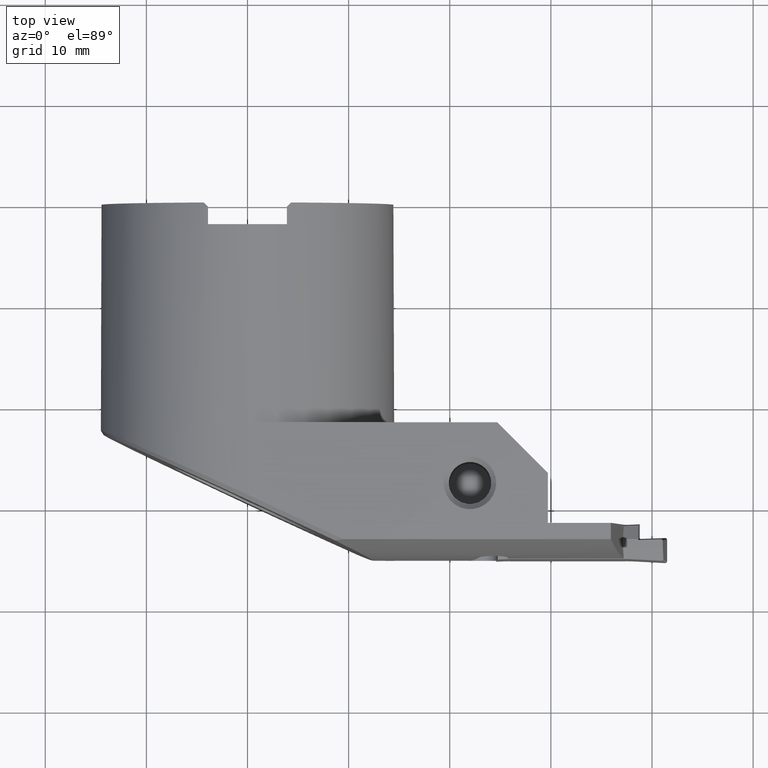
[diagram: clean part render]
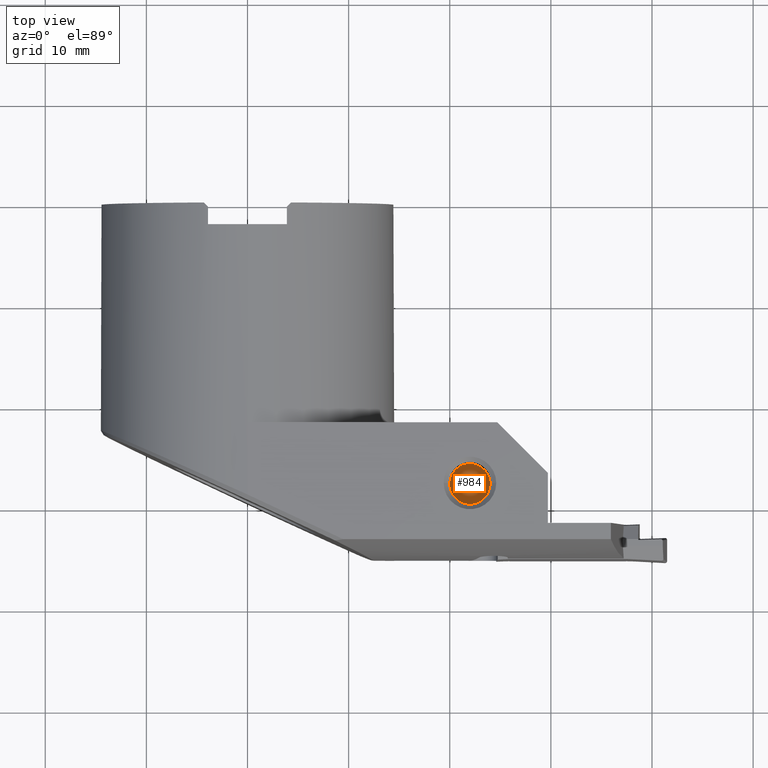
[diagram: same view with one face highlighted and labeled with its STEP entity id]
A machine part, top view. The second image highlights one B-rep face of the part: STEP entity #984.
In plain terms, the highlighted planar face has unit normal (-0, 0, -1).
Its self-contained STEP definition (entity closure, byte-faithful):
#984=ADVANCED_FACE('NONE',(#2476),#2477,.F.);
#1068=VERTEX_POINT('NONE',#2567);
#1070=EDGE_CURVE('NONE',#1474,#1068,#2569,.T.);
#1474=VERTEX_POINT('NONE',#3014);
#1494=EDGE_CURVE('NONE',#1068,#1474,#3034,.T.);
#2476=FACE_OUTER_BOUND('',#4345,.T.);
#2477=PLANE('',#4346);
#2567=CARTESIAN_POINT('',(19.9999999999999,-27.7499999999999,9.00000000000001));
#2569=CIRCLE('',#4540,2.0);
#3014=CARTESIAN_POINT('',(23.9999999999999,-27.7499999999999,9.00000000000001));
#3034=CIRCLE('',#5295,2.0);
#4345=EDGE_LOOP('',(#7222,#7223));
#4346=AXIS2_PLACEMENT_3D('',#7224,#7225,#7226);
#4540=AXIS2_PLACEMENT_3D('',#7296,#7297,#7298);
#5295=AXIS2_PLACEMENT_3D('',#7763,#7764,#7765);
#7222=ORIENTED_EDGE('',*,*,#1494,.T.);
#7223=ORIENTED_EDGE('',*,*,#1070,.T.);
#7224=CARTESIAN_POINT('',(21.9999999999999,-25.2499999999998,9.00000000000001));
#7225=DIRECTION('',(-1.55956869617806E-016,3.98923509476652E-018,-1.0));
#7226=DIRECTION('',(-1.0,2.77555756156289E-016,1.55956869617806E-016));
#7296=CARTESIAN_POINT('',(21.9999999999999,-27.7499999999999,9.00000000000001));
#7297=DIRECTION('',(1.55956869617806E-016,-3.98923509476652E-018,1.0));
#7298=DIRECTION('',(-1.0,2.77555756156289E-016,1.55956869617806E-016));
#7763=CARTESIAN_POINT('',(21.9999999999999,-27.7499999999999,9.00000000000001));
#7764=DIRECTION('',(1.55956869617806E-016,-3.98923509476652E-018,1.0));
#7765=DIRECTION('',(-1.0,2.77555756156289E-016,1.55956869617806E-016));